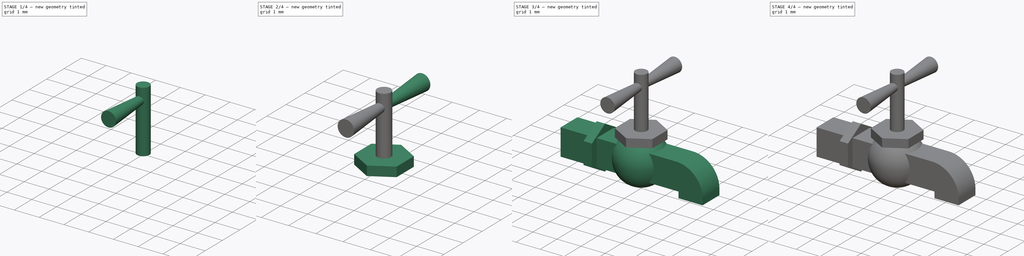
[diagram: build sequence overview — one tinted view per stage of 4, left to right]
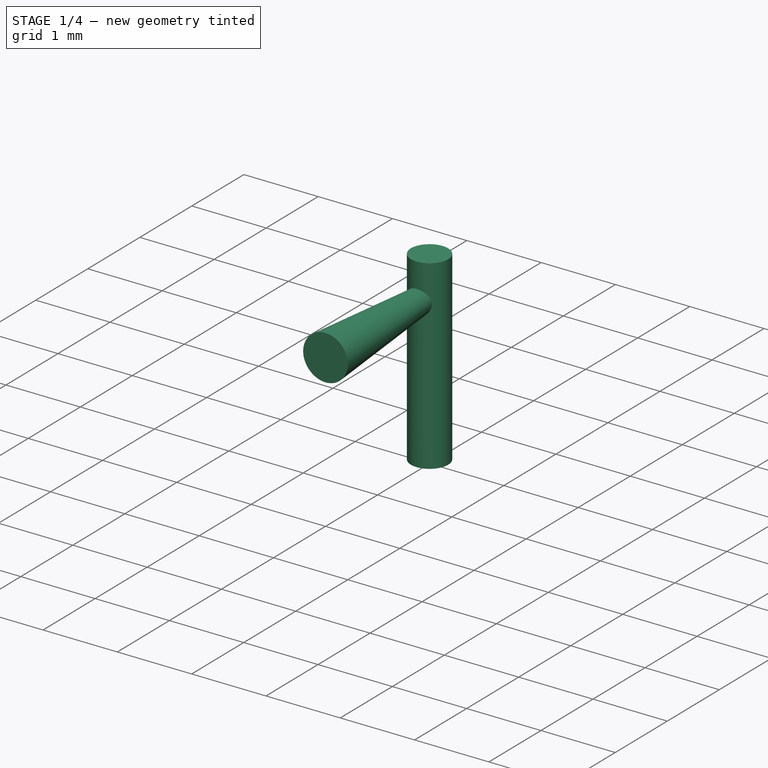
[diagram: stage 1 of 4 — iso view after this stage's code; geometry added in this stage tinted green]
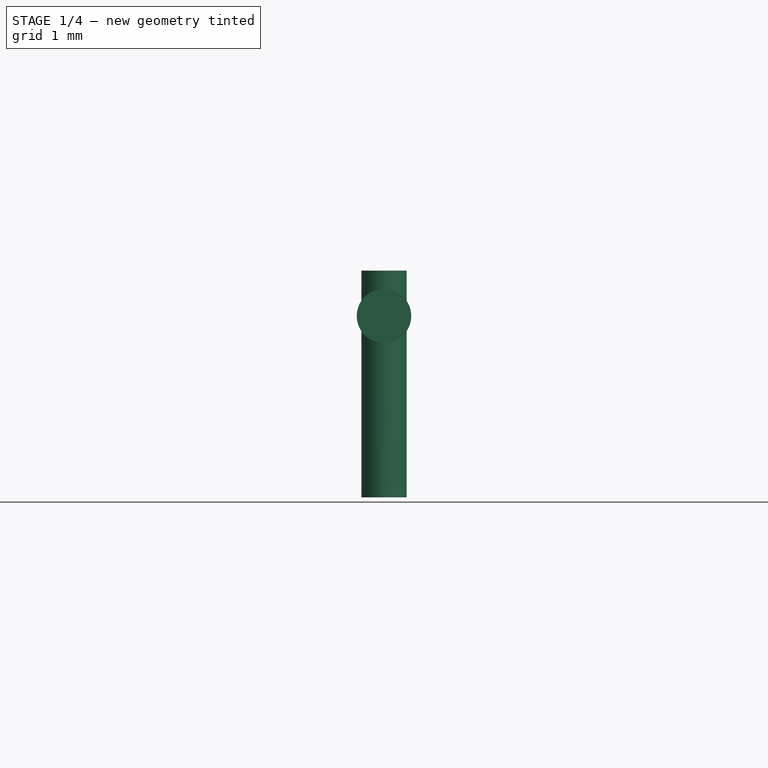
[diagram: stage 1 of 4 — front view after this stage's code; geometry added in this stage tinted green]
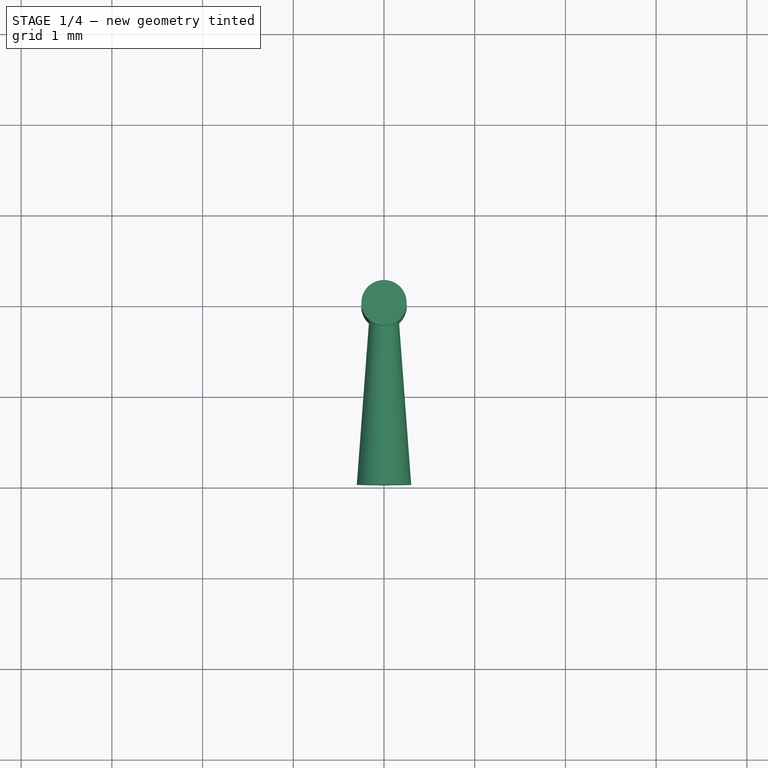
[diagram: stage 1 of 4 — top view after this stage's code; geometry added in this stage tinted green]
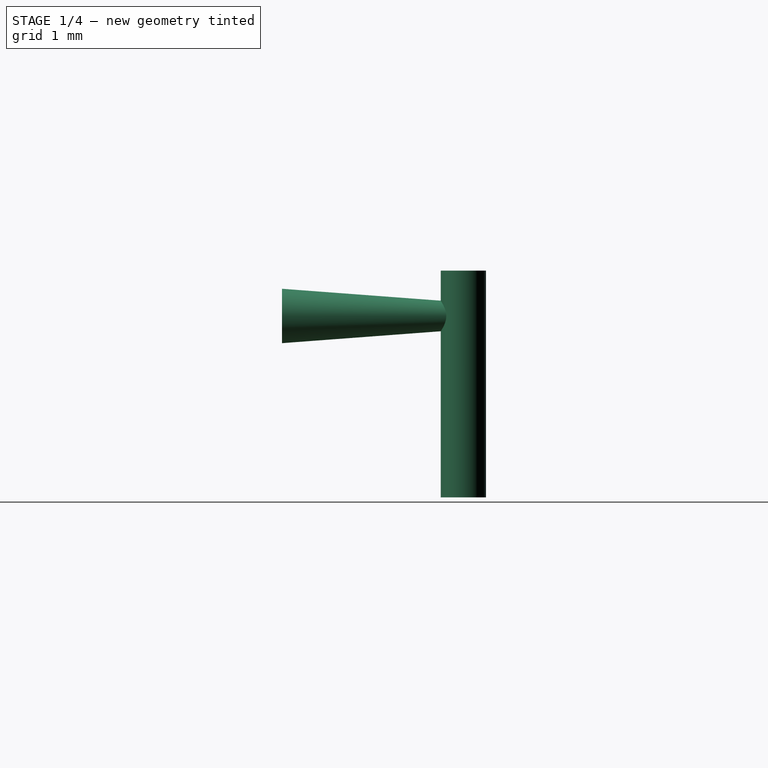
[diagram: stage 1 of 4 — right view after this stage's code; geometry added in this stage tinted green]
FCSTD DOCUMENT  (FreeCAD 0.17R13528 (Git))
Label: wasserhahn
License: All rights reserved
LicenseURL: http://en.wikipedia.org/wiki/All_rights_reserved
objects: Sketcher::SketchObject×3, PartDesign::Pad×3, PartDesign::AdditiveCylinder×1, PartDesign::AdditiveCone×1, PartDesign::Mirrored×1, PartDesign::AdditiveSphere×1, PartDesign::AdditivePrism×1, PartDesign::Pocket×1, PartDesign::Body×1
note: 21 computed .brp shape members not serialized (recipe doc carries the construction recipe); baked Part::Feature solids carry a one-line shape summary decoded from their .brp

FEATURE [PartDesign::AdditiveCylinder] Cylinder
  Angle = 360
  AttacherType = Attacher::AttachEngine3D
  Height = 2.5
  Radius = 0.25
FEATURE [PartDesign::AdditiveCone] Cone
  Angle = 360
  AttacherType = Attacher::AttachEngine3D
  AttachmentOffset = pos=(0,2,0) rot=(0,0,1;0rad)
  BaseFeature = -> Cylinder
  Height = 2
  MapMode = 2
  Placement = pos=(0,0,2) rot=(1,0,0;1.5708rad)
  Radius1 = 0.15
  Radius2 = 0.3
  Support = -> [XZ_Plane]
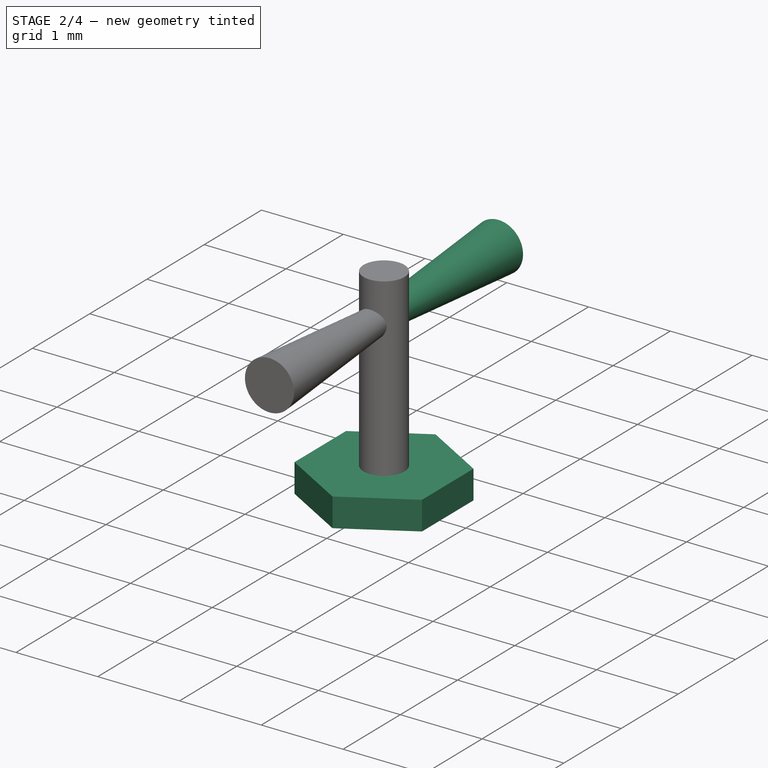
[diagram: stage 2 of 4 — iso view after this stage's code; geometry added in this stage tinted green]
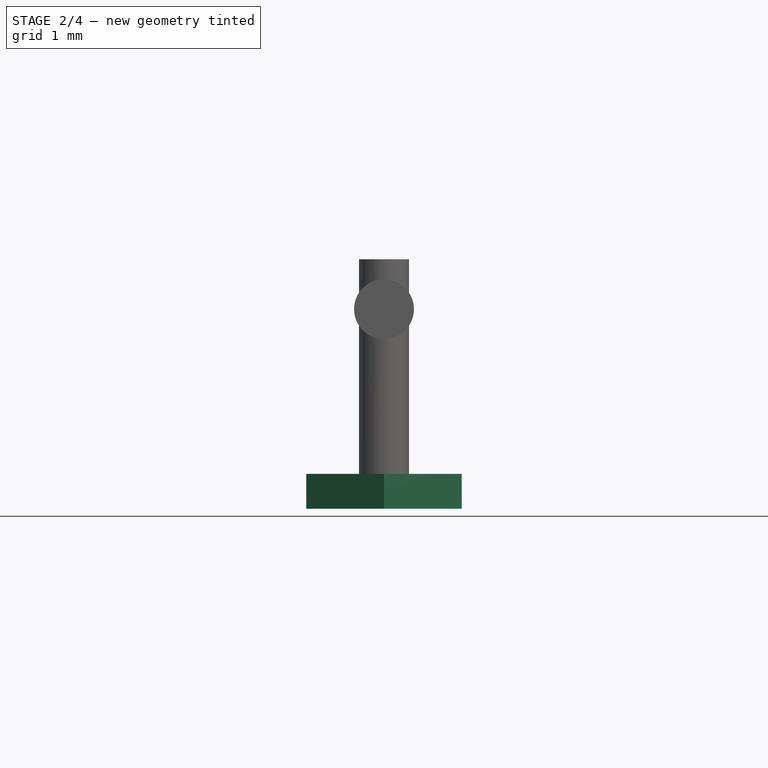
[diagram: stage 2 of 4 — front view after this stage's code; geometry added in this stage tinted green]
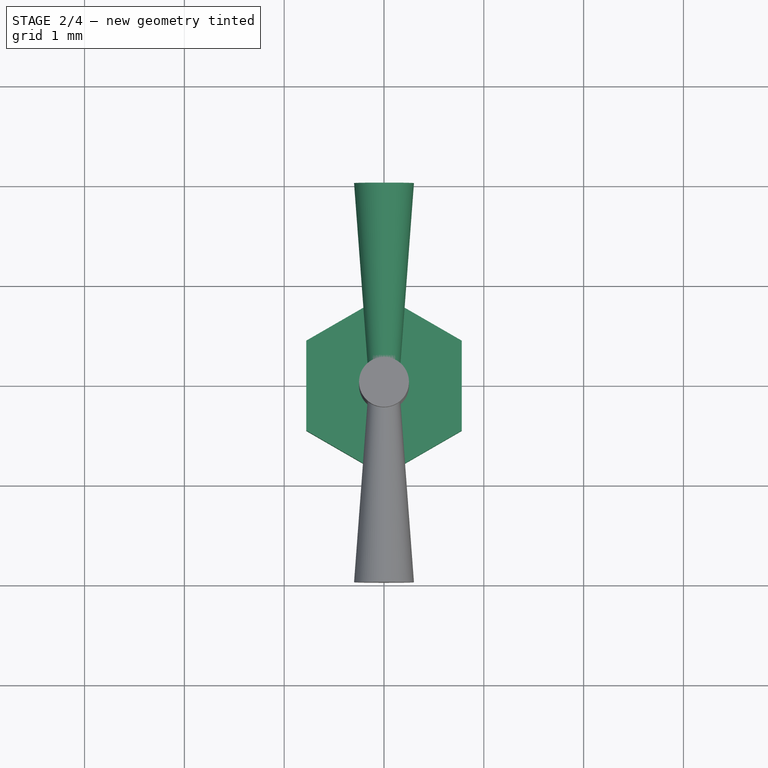
[diagram: stage 2 of 4 — top view after this stage's code; geometry added in this stage tinted green]
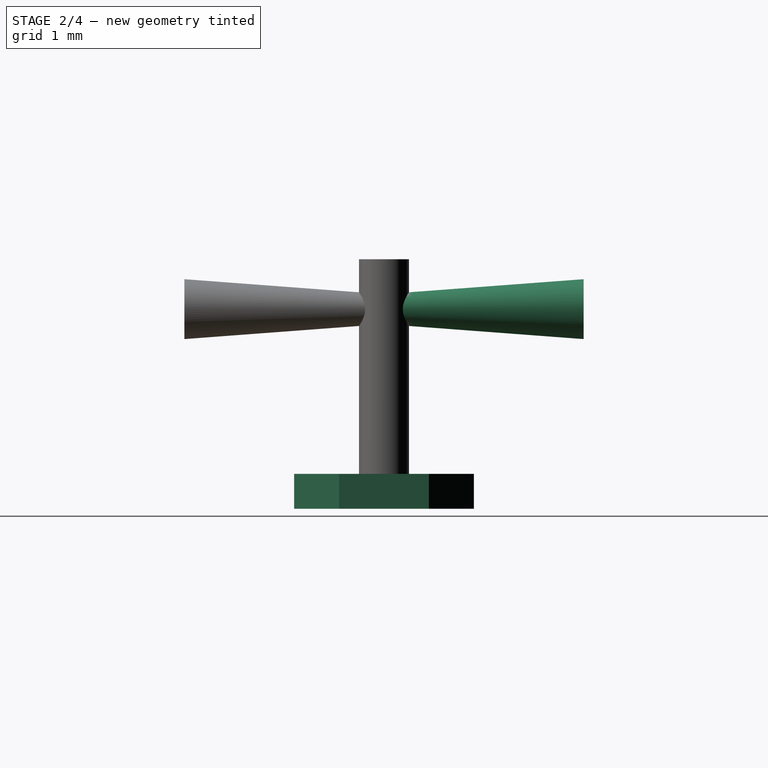
[diagram: stage 2 of 4 — right view after this stage's code; geometry added in this stage tinted green]
FEATURE [PartDesign::Mirrored] Mirrored
  BaseFeature = -> Cone
  MirrorPlane = -> XZ_Plane
  Originals = -> [Cone]
  Placement = pos=(0,0,2) rot=(1,0,0;1.5708rad)
FEATURE [Sketcher::SketchObject] Sketch
  MapMode = 5
  Placement = pos=(0,0,0) rot=(1,0,0;3.14159rad)
  Support = -> [Mirrored]
  sketch-geometry (7):
    g0: LineSegment StartX=0.779423 StartY=-0.45 StartZ=0 EndX=0.779423 EndY=0.45 EndZ=0
    g1: LineSegment StartX=0.779423 StartY=0.45 StartZ=0 EndX=0 EndY=0.9 EndZ=0
    g2: LineSegment StartX=0 StartY=0.9 StartZ=0 EndX=-0.779423 EndY=0.45 EndZ=0
    g3: LineSegment StartX=-0.779423 StartY=0.45 StartZ=0 EndX=-0.779423 EndY=-0.45 EndZ=0
    g4: LineSegment StartX=-0.779423 StartY=-0.45 StartZ=0 EndX=0 EndY=-0.9 EndZ=0
    g5: LineSegment StartX=0 StartY=-0.9 StartZ=0 EndX=0.779423 EndY=-0.45 EndZ=0
    g6: Circle [constr] CenterX=0 CenterY=0 CenterZ=0 NormalX=0 NormalY=0 NormalZ=1 AngleXU=0 Radius=0.9
  constraints (16):
    c: Coincident(g0,g1)
    c: Coincident(g1,g2)
    c: Coincident(g2,g3)
    c: Coincident(g3,g4)
    c: Coincident(g4,g5)
    c: Coincident(g5,g0)
    c: Equal(g0, g1-g5) x5
    c: PointOnObject(g0,g6)
    c: PointOnObject(g1,g6)
    c: PointOnObject(g2,g6)
    c: PointOnObject(g3,g6)
    c: PointOnObject(g4,g6)
    c: PointOnObject(g5,g6)
    c: Coincident(g6,g-1)
    c: DistanceX(g1,g-1) = 0
    c: Radius(g6) = 0.9
FEATURE [PartDesign::Pad] Pad
  BaseFeature = -> Mirrored
  Length = 0.35
  Length2 = 100
  Placement = pos=(0,0,2) rot=(1,0,0;1.5708rad)
  Profile = -> Sketch
  Reversed = true
  Type = 0
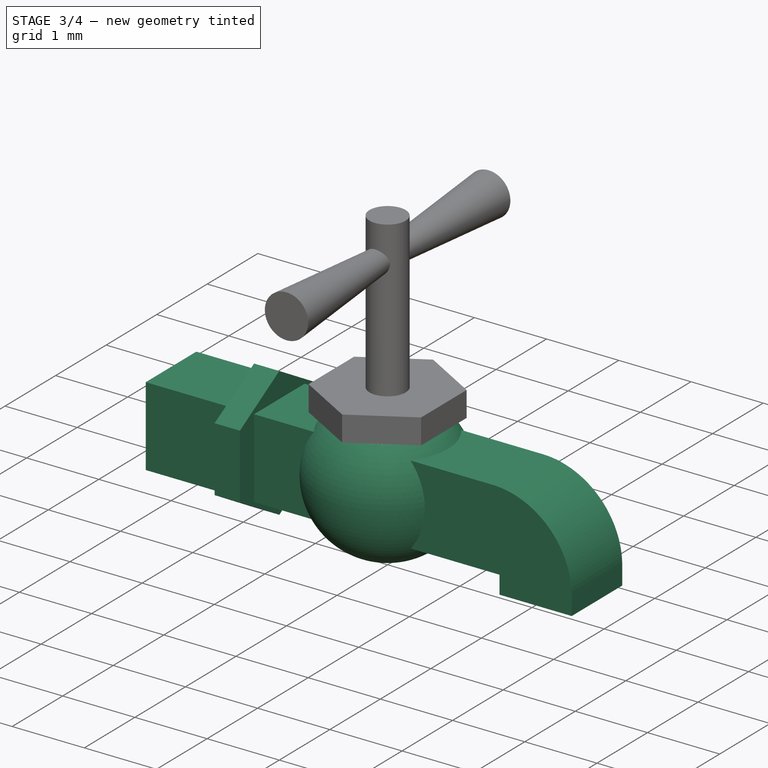
[diagram: stage 3 of 4 — iso view after this stage's code; geometry added in this stage tinted green]
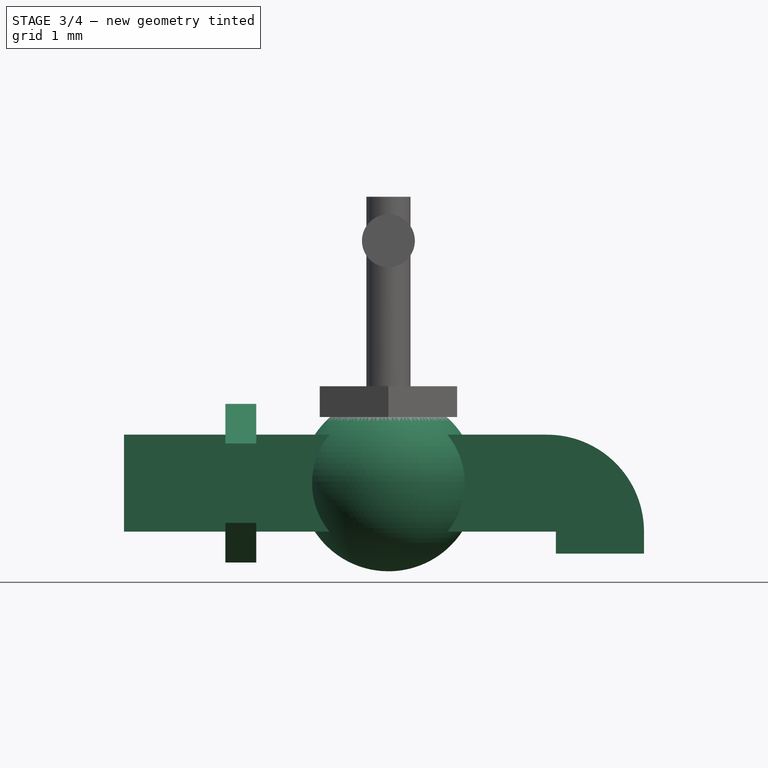
[diagram: stage 3 of 4 — front view after this stage's code; geometry added in this stage tinted green]
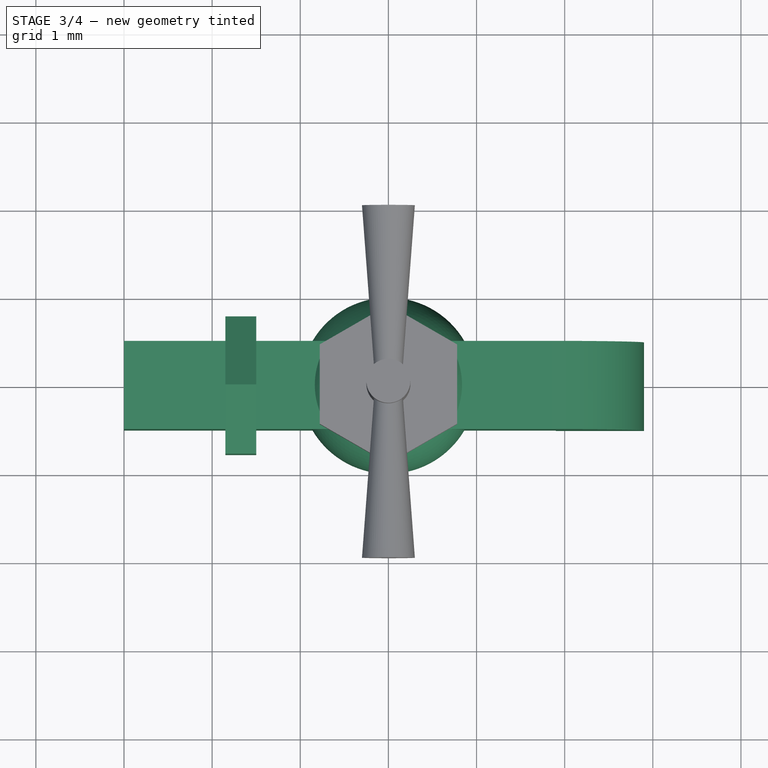
[diagram: stage 3 of 4 — top view after this stage's code; geometry added in this stage tinted green]
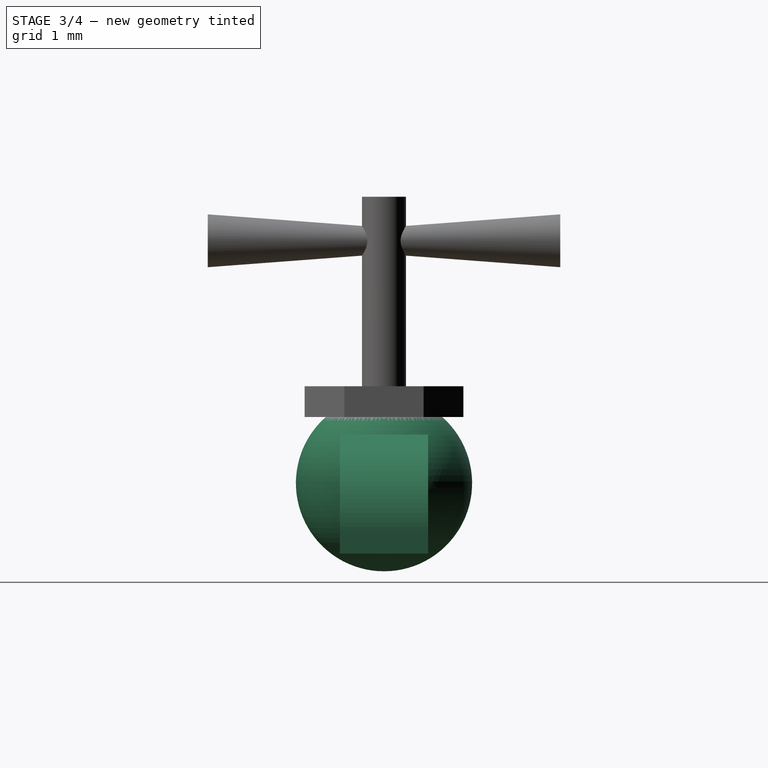
[diagram: stage 3 of 4 — right view after this stage's code; geometry added in this stage tinted green]
FEATURE [PartDesign::AdditiveSphere] Sphere
  Angle1 = -90
  Angle2 = 90
  Angle3 = 360
  AttacherType = Attacher::AttachEngine3D
  AttachmentOffset = pos=(0,0,-0.75) rot=(0,0,1;0rad)
  BaseFeature = -> Pad
  MapMode = 5
  Placement = pos=(0,0,-0.75) rot=(0,0,1;0rad)
  Radius = 1
  Support = -> [XY_Plane]
FEATURE [Sketcher::SketchObject] Sketch001
  MapMode = 3
  Placement = pos=(0,0,-0.75) rot=(1,0,0;1.5708rad)
  Support = -> [Sphere]
  sketch-geometry (7):
    g0: LineSegment StartX=-3 StartY=0.55 StartZ=0 EndX=1.8 EndY=0.55 EndZ=0
    g1: ArcOfCircle CenterX=1.8 CenterY=-0.55 CenterZ=0 NormalX=0 NormalY=0 NormalZ=1 AngleXU=0 Radius=1.1 StartAngle=0 EndAngle=1.5708
    g2: LineSegment StartX=2.9 StartY=-0.55 StartZ=0 EndX=2.9 EndY=-0.8 EndZ=0
    g3: LineSegment StartX=2.9 StartY=-0.8 StartZ=0 EndX=1.9 EndY=-0.8 EndZ=0
    g4: LineSegment StartX=1.9 StartY=-0.8 StartZ=0 EndX=1.9 EndY=-0.55 EndZ=0
    g5: LineSegment StartX=1.9 StartY=-0.55 StartZ=0 EndX=-3 EndY=-0.55 EndZ=0
    g6: LineSegment StartX=-3 StartY=-0.55 StartZ=0 EndX=-3 EndY=0.55 EndZ=0
  constraints (20):
    c: Horizontal(g0)
    c: Tangent(g0,g1) = 1.5708
    c: Tangent(g1,g2) = 1.5708
    c: Coincident(g2,g3)
    c: Horizontal(g3)
    c: Coincident(g3,g4)
    c: Coincident(g4,g5)
    c: Horizontal(g5)
    c: Coincident(g5,g6)
    c: Vertical(g6)
    c: DistanceY(g6,g6) = 1.1
    c: Radius(g1) = 1.1
    c: Equal(g4,g2)
    c: Angle(g5,g4) = 1.5708
    c: DistanceY(g-1,g6) = 0.55
    c: Coincident(g6,g0)
    c: DistanceX(g3,g3) = 1
    c: DistanceY(g2,g1) = 0.25
    c: DistanceX(g0,g-1) = 3
    c: DistanceX(g5,g1) = 4.8
FEATURE [PartDesign::Pad] Pad001
  BaseFeature = -> Sphere
  Length = 1
  Length2 = 100
  Midplane = true
  Placement = pos=(0,0,-0.75) rot=(0,0,1;0rad)
  Profile = -> Sketch001
  Type = 0
FEATURE [PartDesign::AdditivePrism] Prism
  AttacherType = Attacher::AttachEngine3D
  AttachmentOffset = pos=(0,0,-1.5) rot=(0,0,1;0.523599rad)
  BaseFeature = -> Pad001
  Circumradius = 0.9
  Height = 0.35
  MapMode = 5
  Placement = pos=(-1.5,0,-0.75) rot=(0.447214,-0.774597,-0.447214;1.82348rad)
  Polygon = 6
  Support = -> [Pad001]
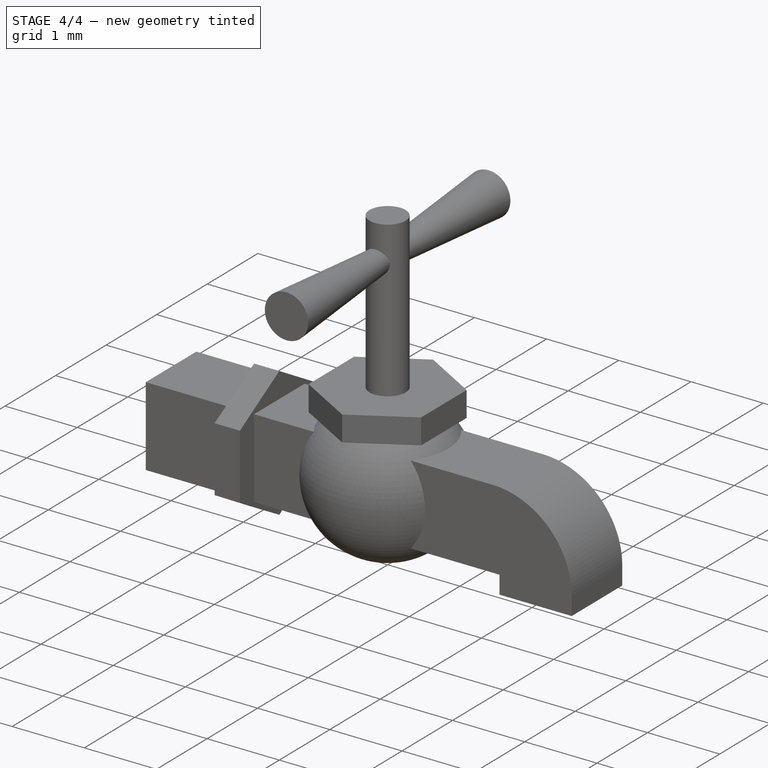
[diagram: stage 4 of 4 — iso view after this stage's code; geometry added in this stage tinted green]
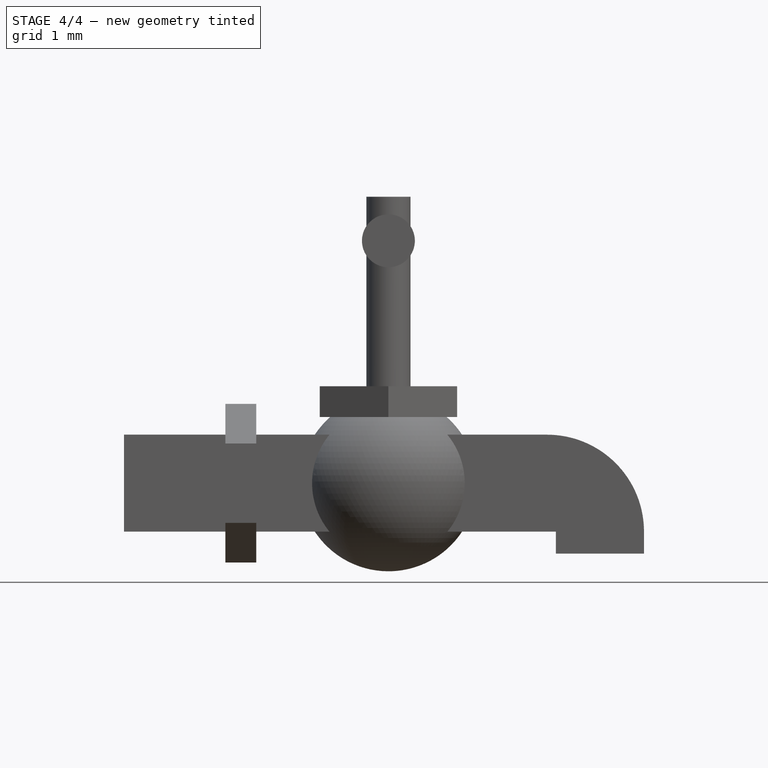
[diagram: stage 4 of 4 — front view after this stage's code; geometry added in this stage tinted green]
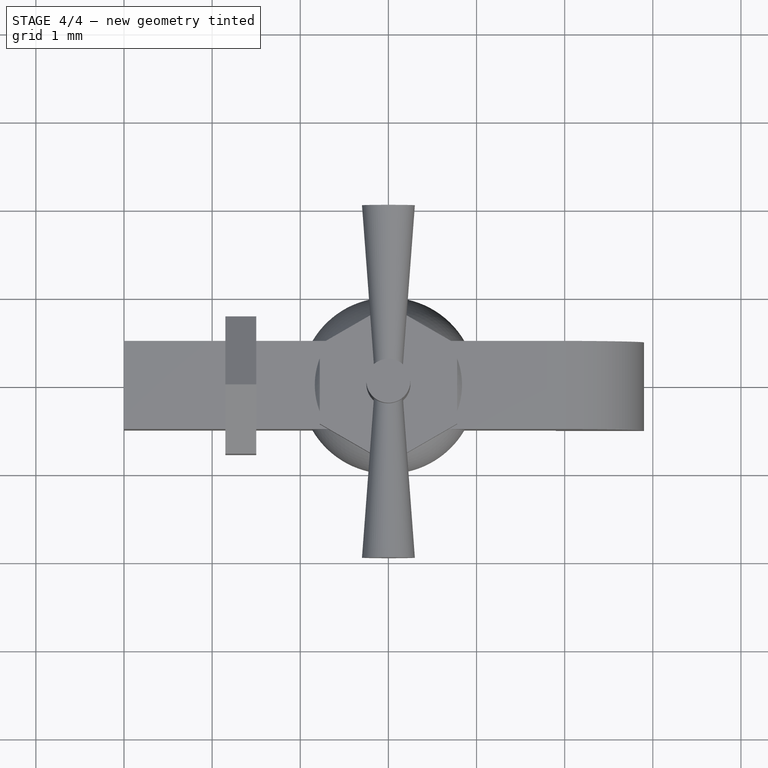
[diagram: stage 4 of 4 — top view after this stage's code; geometry added in this stage tinted green]
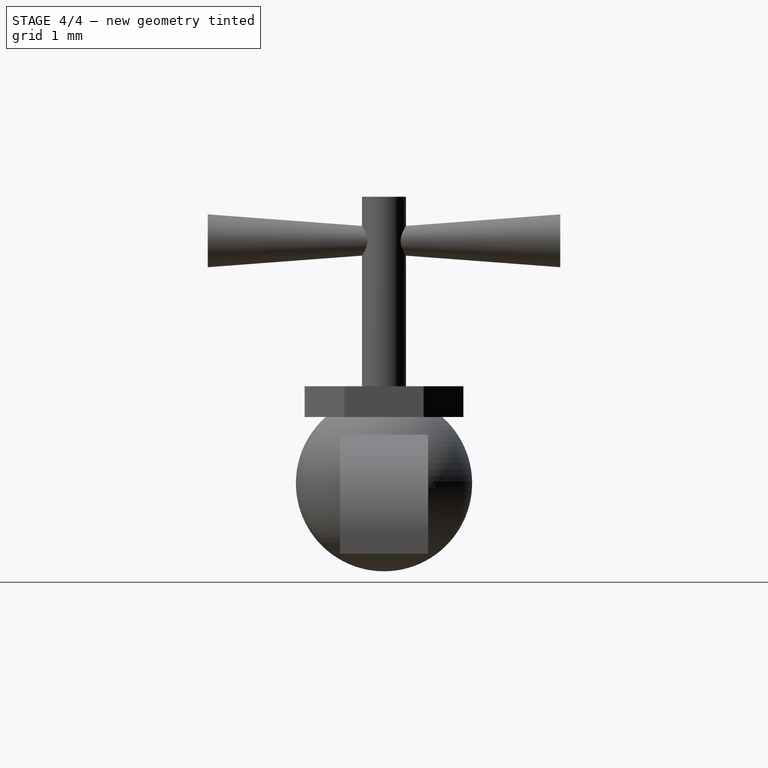
[diagram: stage 4 of 4 — right view after this stage's code; geometry added in this stage tinted green]
FEATURE [Sketcher::SketchObject] Sketch002
  MapMode = 3
  Placement = pos=(0,0,-0.75) rot=(1,0,0;1.5708rad)
  Support = -> [Sphere]
  sketch-geometry (7):
    g0: LineSegment StartX=-3 StartY=-0.5 StartZ=0 EndX=-3 EndY=0.5 EndZ=0
    g1: LineSegment StartX=-3 StartY=0.5 StartZ=0 EndX=1.75455 EndY=0.5 EndZ=0
    g2: ArcOfCircle CenterX=1.75455 CenterY=-0.6 CenterZ=0 NormalX=0 NormalY=0 NormalZ=1 AngleXU=0 Radius=1.1 StartAngle=0.0910348 EndAngle=1.5708
    g3: LineSegment StartX=2.85 StartY=-0.5 StartZ=0 EndX=2.85 EndY=-0.8 EndZ=0
    g4: LineSegment StartX=2.85 StartY=-0.8 StartZ=0 EndX=1.95 EndY=-0.8 EndZ=0
    g5: LineSegment StartX=1.95 StartY=-0.8 StartZ=0 EndX=1.95 EndY=-0.5 EndZ=0
    g6: LineSegment StartX=1.95 StartY=-0.5 StartZ=0 EndX=-3 EndY=-0.5 EndZ=0
  constraints (21):
    c: Vertical(g0)
    c: Coincident(g0,g1)
    c: Horizontal(g1)
    c: Tangent(g1,g2) = 1.5708
    c: Coincident(g2,g3)
    c: Coincident(g3,g4)
    c: Horizontal(g4)
    c: Coincident(g4,g5)
    c: Coincident(g5,g6)
    c: Horizontal(g6)
    c: Coincident(g0,g6)
    c: DistanceY(g0,g0) = 1
    c: DistanceX(g0,g-1) = 3
    c: DistanceX(g4,g4) = 0.9
    c: Radius(g2) = 1.1
    c: Equal(g5,g3)
    c: Angle(g6,g5) = 1.5708
    c: Angle(g3,g4) = 1.5708
    c: DistanceY(g-1,g0) = 0.5
    c: DistanceY(g5,g5) = 0.3
    c: DistanceX(g-1,g4) = 1.95
FEATURE [PartDesign::Pad] Pad002
  BaseFeature = -> Prism
  Length = 0.9
  Length2 = 100
  Midplane = true
  Placement = pos=(-1.5,0,-0.75) rot=(0.447214,-0.774597,-0.447214;1.82348rad)
  Profile = -> Sketch002
  Type = 0
FEATURE [PartDesign::Pocket] Pocket
  BaseFeature = -> Pad002
  Length = 0.9
  Length2 = 100
  Midplane = true
  Placement = pos=(-1.5,0,-0.75) rot=(0.447214,-0.774597,-0.447214;1.82348rad)
  Profile = -> Sketch002
  Type = 0
FEATURE [PartDesign::Body] Body
  Group = -> [Cylinder,Cone,Mirrored,Sketch,Pad,Sphere,Sketch001,Pad001,Prism,Sketch002,Pad002,Pocket]
  Origin = -> Origin
  Tip = -> Pocket
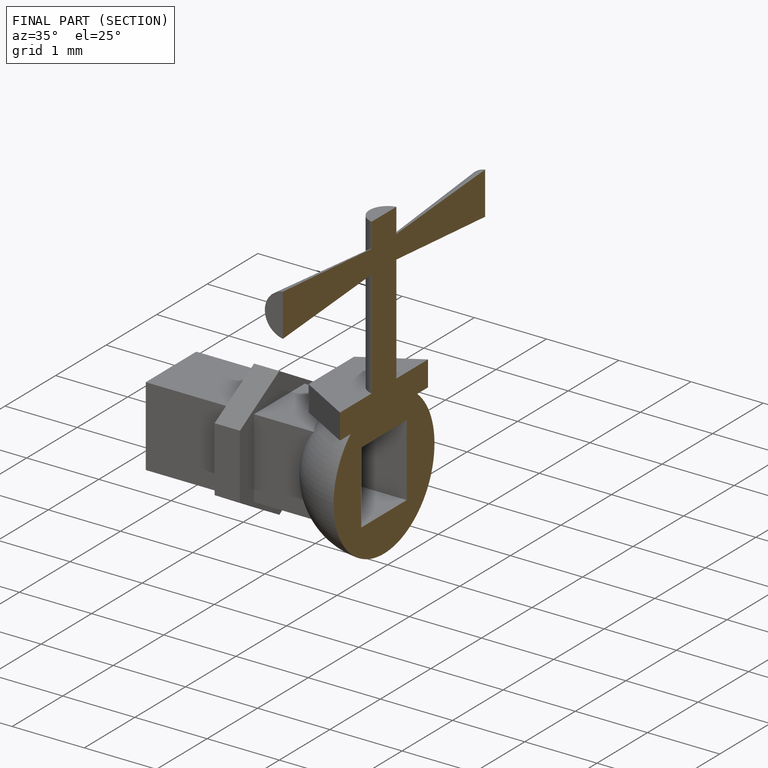
[diagram: finished part — half-section view (interior)]
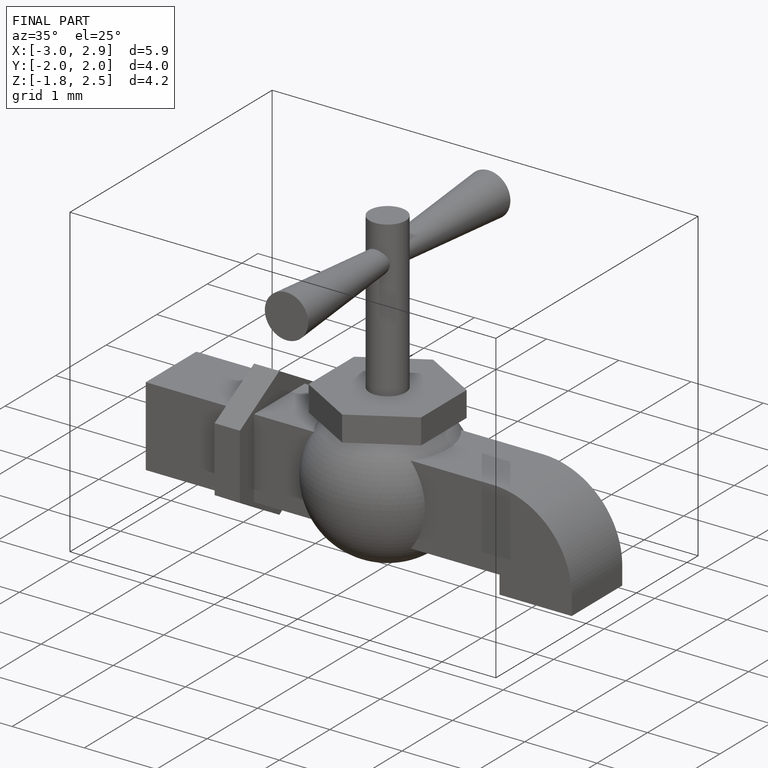
[diagram: finished part — iso view with bounding-box wireframe]
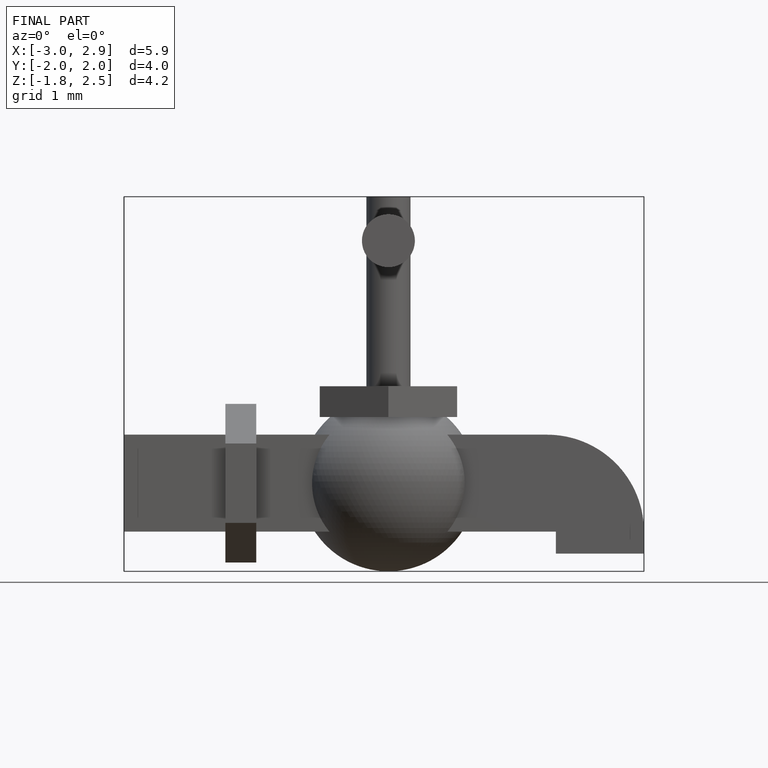
[diagram: finished part — front view with bounding-box wireframe]
